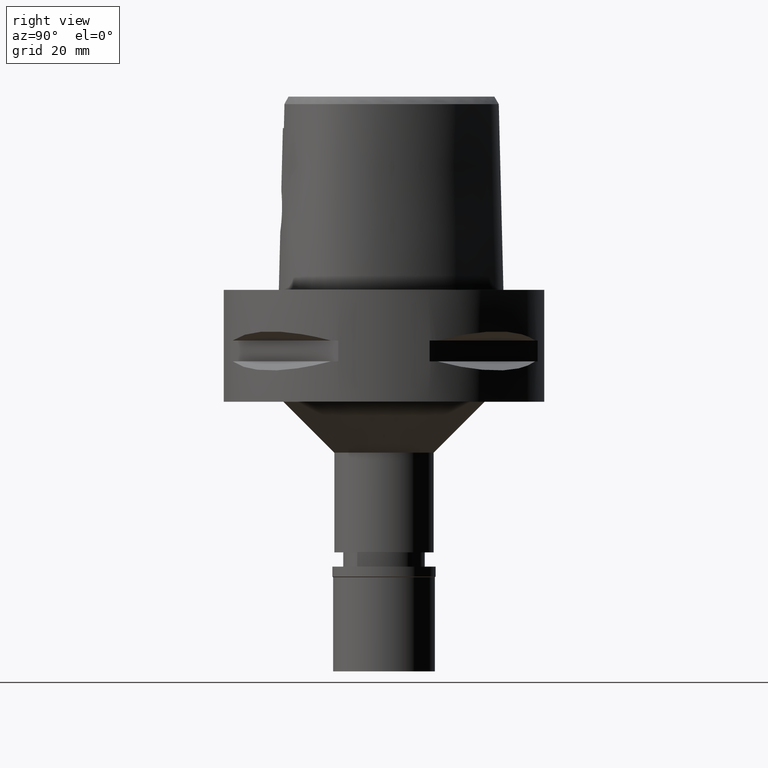
[diagram: clean part render]
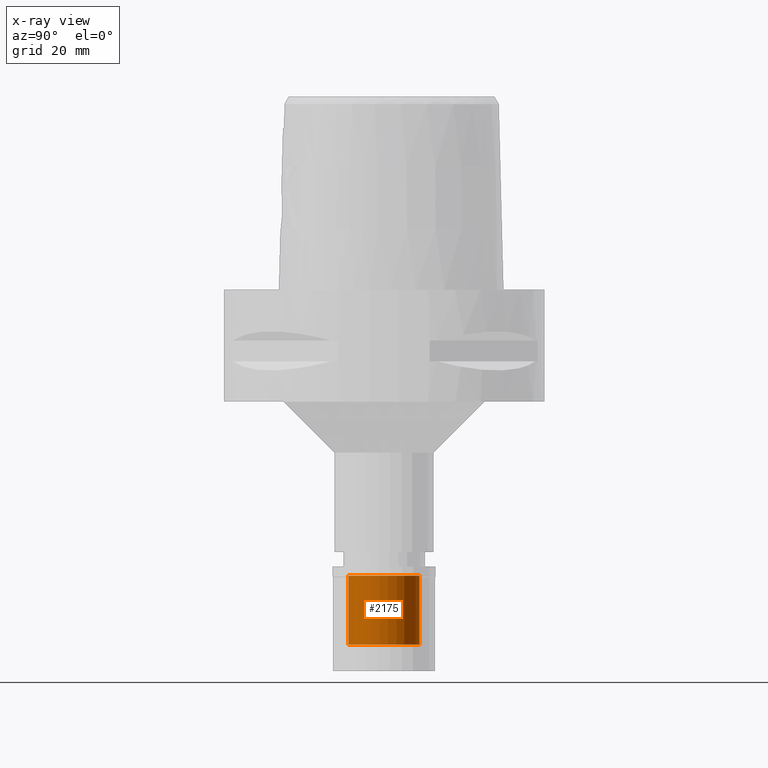
[diagram: x-ray — body ghosted, one internal face saturated and labeled with its STEP entity id]
A machine part, right view, then the same camera in x-ray: the body is ghosted and one INTERNAL B-rep face — a face not visible from any outside direction — is saturated and labeled: STEP entity #2175.
In plain terms, the highlighted cylindrical surface (edge-blend (fillet) strip) has radius 7 mm, axis along (0, 0, -1).
Its self-contained STEP definition (entity closure, byte-faithful):
#142 = CIRCLE ( 'NONE', #1611, 7.000000000000000000 ) ;
#197 = ORIENTED_EDGE ( 'NONE', *, *, #919, .T. ) ;
#414 = DIRECTION ( 'NONE',  ( 0.0000000000000000000, 0.0000000000000000000, -1.000000000000000000 ) ) ;
#518 = FACE_OUTER_BOUND ( 'NONE', #766, .T. ) ;
#586 = CARTESIAN_POINT ( 'NONE',  ( 0.0000000000000000000, 7.000000000000000000, -1.800000000000000044 ) ) ;
#766 = EDGE_LOOP ( 'NONE', ( #3866, #197, #3814, #4516 ) ) ;
#780 = VERTEX_POINT ( 'NONE', #586 ) ;
#876 = DIRECTION ( 'NONE',  ( 0.0000000000000000000, 0.0000000000000000000, 1.000000000000000000 ) ) ;
#879 = CARTESIAN_POINT ( 'NONE',  ( 0.0000000000000000000, 0.0000000000000000000, -15.29999999999999893 ) ) ;
#903 = DIRECTION ( 'NONE',  ( 0.0000000000000000000, 0.0000000000000000000, 1.000000000000000000 ) ) ;
#919 = EDGE_CURVE ( 'NONE', #1841, #2720, #1730, .T. ) ;
#1067 = CARTESIAN_POINT ( 'NONE',  ( 0.0000000000000000000, -7.000000000000000000, -15.29999999999999893 ) ) ;
#1071 = AXIS2_PLACEMENT_3D ( 'NONE', #2999, #414, #1892 ) ;
#1337 = CARTESIAN_POINT ( 'NONE',  ( 0.0000000000000000000, -7.000000000000000000, -1.800000000000000044 ) ) ;
#1387 = CIRCLE ( 'NONE', #4439, 7.000000000000000000 ) ;
#1584 = CARTESIAN_POINT ( 'NONE',  ( 0.0000000000000000000, 7.000000000000000000, -15.29999999999999893 ) ) ;
#1611 = AXIS2_PLACEMENT_3D ( 'NONE', #879, #3166, #3556 ) ;
#1730 = LINE ( 'NONE', #1067, #2229 ) ;
#1750 = EDGE_CURVE ( 'NONE', #4603, #1841, #142, .T. ) ;
#1841 = VERTEX_POINT ( 'NONE', #4681 ) ;
#1892 = DIRECTION ( 'NONE',  ( 0.0000000000000000000, -1.000000000000000000, 0.0000000000000000000 ) ) ;
#2112 = EDGE_CURVE ( 'NONE', #2720, #780, #1387, .T. ) ;
#2175 = ADVANCED_FACE ( 'NONE', ( #518 ), #3507, .F. ) ;
#2229 = VECTOR ( 'NONE', #2565, 1000.000000000000000 ) ;
#2321 = EDGE_CURVE ( 'NONE', #4603, #780, #2454, .T. ) ;
#2454 = LINE ( 'NONE', #3945, #3975 ) ;
#2565 = DIRECTION ( 'NONE',  ( 0.0000000000000000000, 0.0000000000000000000, 1.000000000000000000 ) ) ;
#2720 = VERTEX_POINT ( 'NONE', #1337 ) ;
#2999 = CARTESIAN_POINT ( 'NONE',  ( 0.0000000000000000000, 0.0000000000000000000, 0.0000000000000000000 ) ) ;
#3166 = DIRECTION ( 'NONE',  ( 0.0000000000000000000, 0.0000000000000000000, -1.000000000000000000 ) ) ;
#3507 = CYLINDRICAL_SURFACE ( 'NONE', #1071, 7.000000000000000000 ) ;
#3556 = DIRECTION ( 'NONE',  ( 0.0000000000000000000, 1.000000000000000000, 0.0000000000000000000 ) ) ;
#3814 = ORIENTED_EDGE ( 'NONE', *, *, #2112, .T. ) ;
#3842 = DIRECTION ( 'NONE',  ( 0.0000000000000000000, -1.000000000000000000, 0.0000000000000000000 ) ) ;
#3866 = ORIENTED_EDGE ( 'NONE', *, *, #1750, .T. ) ;
#3945 = CARTESIAN_POINT ( 'NONE',  ( 0.0000000000000000000, 7.000000000000000000, -15.29999999999999893 ) ) ;
#3975 = VECTOR ( 'NONE', #903, 1000.000000000000000 ) ;
#4225 = CARTESIAN_POINT ( 'NONE',  ( 0.0000000000000000000, 0.0000000000000000000, -1.800000000000000044 ) ) ;
#4439 = AXIS2_PLACEMENT_3D ( 'NONE', #4225, #876, #3842 ) ;
#4516 = ORIENTED_EDGE ( 'NONE', *, *, #2321, .F. ) ;
#4603 = VERTEX_POINT ( 'NONE', #1584 ) ;
#4681 = CARTESIAN_POINT ( 'NONE',  ( 0.0000000000000000000, -7.000000000000000000, -15.29999999999999893 ) ) ;